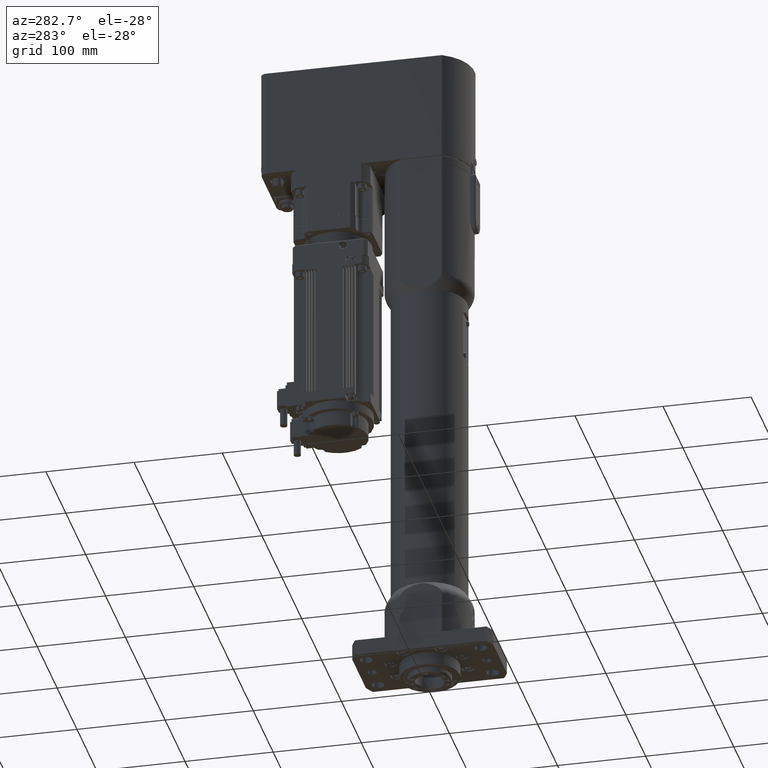
[diagram: clean part render]
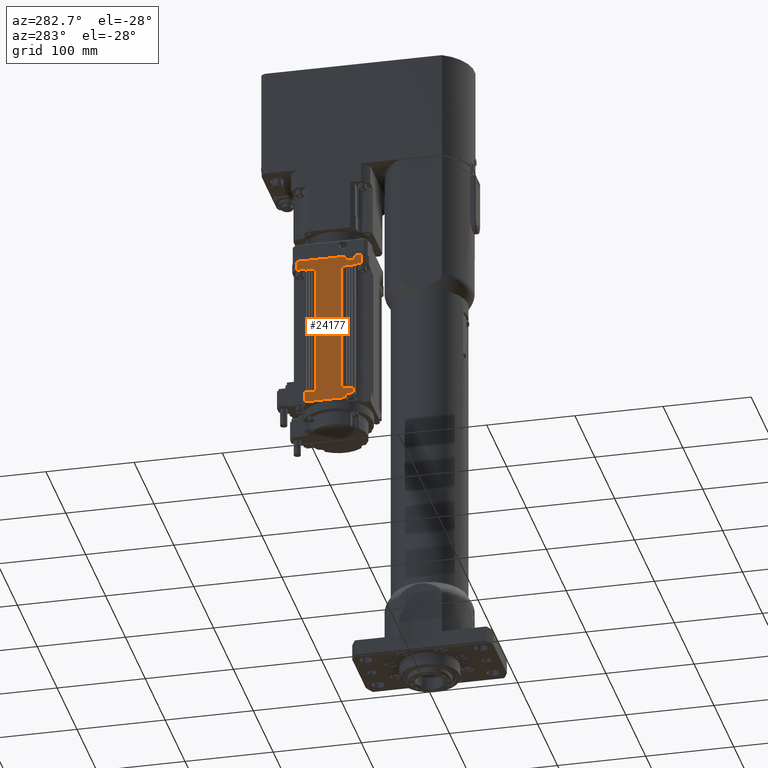
[diagram: same view with one face highlighted and labeled with its STEP entity id]
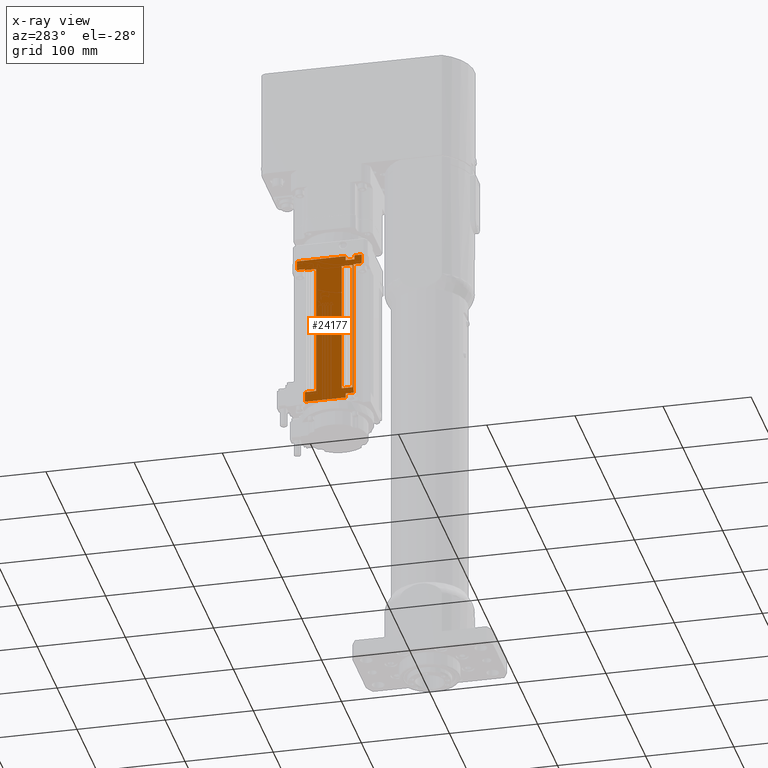
[diagram: x-ray of the same camera — body ghosted, the highlighted face saturated]
A machine part, auxiliary view. The second image highlights one B-rep face of the part: STEP entity #24177.
The next image is the same camera in x-ray: the body ghosted, the highlighted face saturated — about 0% of this face is hidden behind the body in this view.
In plain terms, the highlighted planar face has unit normal (-1, 0, 0).
Its self-contained STEP definition (entity closure, byte-faithful):
#1192=LINE('',#37565,#2947);
#1195=LINE('',#37578,#2950);
#1211=LINE('',#37623,#2966);
#1213=LINE('',#37629,#2968);
#1216=LINE('',#37634,#2971);
#1386=LINE('',#38057,#3141);
#1393=LINE('',#38075,#3148);
#1405=LINE('',#38105,#3160);
#1412=LINE('',#38125,#3167);
#1416=LINE('',#38139,#3171);
#1422=LINE('',#38154,#3177);
#1438=LINE('',#38206,#3193);
#1441=LINE('',#38217,#3196);
#1444=LINE('',#38228,#3199);
#1447=LINE('',#38238,#3202);
#1493=LINE('',#38383,#3248);
#1692=LINE('',#39104,#3447);
#1693=LINE('',#39107,#3448);
#1695=LINE('',#39112,#3450);
#1705=LINE('',#39140,#3460);
#1708=LINE('',#39148,#3463);
#1712=LINE('',#39159,#3467);
#1718=LINE('',#39177,#3473);
#1722=LINE('',#39186,#3477);
#1730=LINE('',#39209,#3485);
#1739=LINE('',#39229,#3494);
#1744=LINE('',#39242,#3499);
#1745=LINE('',#39248,#3500);
#1746=LINE('',#39252,#3501);
#1749=LINE('',#39262,#3504);
#1750=LINE('',#39266,#3505);
#1751=LINE('',#39267,#3506);
#1752=LINE('',#39268,#3507);
#1753=LINE('',#39269,#3508);
#2947=VECTOR('',#29880,10.);
#2950=VECTOR('',#29893,10.);
#2966=VECTOR('',#29937,10.);
#2968=VECTOR('',#29943,10.);
#2971=VECTOR('',#29948,10.);
#3141=VECTOR('',#30302,10.);
#3148=VECTOR('',#30315,10.);
#3160=VECTOR('',#30337,10.);
#3167=VECTOR('',#30354,10.);
#3171=VECTOR('',#30366,10.);
#3177=VECTOR('',#30378,10.);
#3193=VECTOR('',#30428,10.);
#3196=VECTOR('',#30437,10.);
#3199=VECTOR('',#30448,10.);
#3202=VECTOR('',#30459,10.);
#3248=VECTOR('',#30599,10.);
#3447=VECTOR('',#31324,10.);
#3448=VECTOR('',#31327,10.);
#3450=VECTOR('',#31331,10.);
#3460=VECTOR('',#31365,10.);
#3463=VECTOR('',#31376,10.);
#3467=VECTOR('',#31390,10.);
#3473=VECTOR('',#31412,10.);
#3477=VECTOR('',#31422,10.);
#3485=VECTOR('',#31446,10.);
#3494=VECTOR('',#31469,10.);
#3499=VECTOR('',#31488,10.);
#3500=VECTOR('',#31497,10.);
#3501=VECTOR('',#31502,10.);
#3504=VECTOR('',#31517,10.);
#3505=VECTOR('',#31524,10.);
#3506=VECTOR('',#31525,10.);
#3507=VECTOR('',#31526,10.);
#3508=VECTOR('',#31527,10.);
#4576=PLANE('',#26364);
#5084=FACE_BOUND('',#7560,.T.);
#6031=FACE_OUTER_BOUND('',#7559,.T.);
#7559=EDGE_LOOP('',(#18561,#18562,#18563,#18564,#18565,#18566,#18567,#18568,
#18569,#18570,#18571,#18572,#18573,#18574,#18575,#18576,#18577,#18578,#18579,
#18580,#18581,#18582,#18583,#18584));
#7560=EDGE_LOOP('',(#18585,#18586,#18587,#18588,#18589,#18590,#18591,#18592,
#18593,#18594));
#10368=VERTEX_POINT('',#37562);
#10369=VERTEX_POINT('',#37564);
#10371=VERTEX_POINT('',#37570);
#10374=VERTEX_POINT('',#37576);
#10387=VERTEX_POINT('',#37617);
#10389=VERTEX_POINT('',#37621);
#10391=VERTEX_POINT('',#37628);
#10392=VERTEX_POINT('',#37632);
#10552=VERTEX_POINT('',#38054);
#10553=VERTEX_POINT('',#38056);
#10559=VERTEX_POINT('',#38071);
#10561=VERTEX_POINT('',#38074);
#10573=VERTEX_POINT('',#38102);
#10574=VERTEX_POINT('',#38104);
#10582=VERTEX_POINT('',#38123);
#10588=VERTEX_POINT('',#38138);
#10592=VERTEX_POINT('',#38150);
#10594=VERTEX_POINT('',#38153);
#10613=VERTEX_POINT('',#38204);
#10617=VERTEX_POINT('',#38214);
#10618=VERTEX_POINT('',#38216);
#10622=VERTEX_POINT('',#38227);
#10676=VERTEX_POINT('',#38380);
#10677=VERTEX_POINT('',#38382);
#10896=VERTEX_POINT('',#39102);
#10897=VERTEX_POINT('',#39106);
#10899=VERTEX_POINT('',#39111);
#10901=VERTEX_POINT('',#39119);
#10904=VERTEX_POINT('',#39131);
#10913=VERTEX_POINT('',#39182);
#10921=VERTEX_POINT('',#39207);
#10925=VERTEX_POINT('',#39227);
#10927=VERTEX_POINT('',#39246);
#10928=VERTEX_POINT('',#39250);
#12935=EDGE_CURVE('',#10368,#10369,#1192,.T.);
#12942=EDGE_CURVE('',#10371,#10374,#1195,.T.);
#12965=EDGE_CURVE('',#10387,#10389,#1211,.T.);
#12968=EDGE_CURVE('',#10391,#10387,#1213,.T.);
#12971=EDGE_CURVE('',#10389,#10392,#1216,.T.);
#13177=EDGE_CURVE('',#10552,#10553,#1386,.T.);
#13185=EDGE_CURVE('',#10561,#10559,#1393,.T.);
#13199=EDGE_CURVE('',#10574,#10573,#1405,.T.);
#13209=EDGE_CURVE('',#10573,#10582,#1412,.T.);
#13216=EDGE_CURVE('',#10574,#10588,#1416,.T.);
#13223=EDGE_CURVE('',#10594,#10592,#1422,.T.);
#13250=EDGE_CURVE('',#10613,#10592,#1438,.T.);
#13255=EDGE_CURVE('',#10617,#10618,#1441,.T.);
#13261=EDGE_CURVE('',#10618,#10622,#1444,.T.);
#13267=EDGE_CURVE('',#10622,#10559,#1447,.T.);
#13343=EDGE_CURVE('',#10677,#10676,#1493,.T.);
#13670=EDGE_CURVE('',#10677,#10896,#1692,.T.);
#13671=EDGE_CURVE('',#10896,#10897,#1693,.T.);
#13674=EDGE_CURVE('',#10588,#10899,#1695,.T.);
#13689=EDGE_CURVE('',#10897,#10901,#1705,.T.);
#13693=EDGE_CURVE('',#10901,#10904,#1708,.T.);
#13699=EDGE_CURVE('',#10904,#10613,#1712,.T.);
#13708=EDGE_CURVE('',#10582,#10594,#1718,.T.);
#13713=EDGE_CURVE('',#10553,#10913,#1722,.T.);
#13725=EDGE_CURVE('',#10921,#10552,#1730,.T.);
#13736=EDGE_CURVE('',#10925,#10921,#1739,.T.);
#13743=EDGE_CURVE('',#10561,#10925,#1744,.T.);
#13746=EDGE_CURVE('',#10676,#10927,#1745,.T.);
#13748=EDGE_CURVE('',#10928,#10927,#1746,.T.);
#13752=EDGE_CURVE('',#10913,#10617,#1749,.T.);
#13753=EDGE_CURVE('',#10369,#10928,#1750,.T.);
#13754=EDGE_CURVE('',#10368,#10391,#1751,.T.);
#13755=EDGE_CURVE('',#10392,#10371,#1752,.T.);
#13756=EDGE_CURVE('',#10899,#10374,#1753,.T.);
#18561=ORIENTED_EDGE('',*,*,#13699,.F.);
#18562=ORIENTED_EDGE('',*,*,#13693,.F.);
#18563=ORIENTED_EDGE('',*,*,#13689,.F.);
#18564=ORIENTED_EDGE('',*,*,#13671,.F.);
#18565=ORIENTED_EDGE('',*,*,#13670,.F.);
#18566=ORIENTED_EDGE('',*,*,#13343,.T.);
#18567=ORIENTED_EDGE('',*,*,#13746,.T.);
#18568=ORIENTED_EDGE('',*,*,#13748,.F.);
#18569=ORIENTED_EDGE('',*,*,#13753,.F.);
#18570=ORIENTED_EDGE('',*,*,#12935,.F.);
#18571=ORIENTED_EDGE('',*,*,#13754,.T.);
#18572=ORIENTED_EDGE('',*,*,#12968,.T.);
#18573=ORIENTED_EDGE('',*,*,#12965,.T.);
#18574=ORIENTED_EDGE('',*,*,#12971,.T.);
#18575=ORIENTED_EDGE('',*,*,#13755,.T.);
#18576=ORIENTED_EDGE('',*,*,#12942,.T.);
#18577=ORIENTED_EDGE('',*,*,#13756,.F.);
#18578=ORIENTED_EDGE('',*,*,#13674,.F.);
#18579=ORIENTED_EDGE('',*,*,#13216,.F.);
#18580=ORIENTED_EDGE('',*,*,#13199,.T.);
#18581=ORIENTED_EDGE('',*,*,#13209,.T.);
#18582=ORIENTED_EDGE('',*,*,#13708,.T.);
#18583=ORIENTED_EDGE('',*,*,#13223,.T.);
#18584=ORIENTED_EDGE('',*,*,#13250,.F.);
#18585=ORIENTED_EDGE('',*,*,#13725,.F.);
#18586=ORIENTED_EDGE('',*,*,#13736,.F.);
#18587=ORIENTED_EDGE('',*,*,#13743,.F.);
#18588=ORIENTED_EDGE('',*,*,#13185,.T.);
#18589=ORIENTED_EDGE('',*,*,#13267,.F.);
#18590=ORIENTED_EDGE('',*,*,#13261,.F.);
#18591=ORIENTED_EDGE('',*,*,#13255,.F.);
#18592=ORIENTED_EDGE('',*,*,#13752,.F.);
#18593=ORIENTED_EDGE('',*,*,#13713,.F.);
#18594=ORIENTED_EDGE('',*,*,#13177,.F.);
#24177=ADVANCED_FACE('',(#6031,#5084),#4576,.T.);
#26364=AXIS2_PLACEMENT_3D('',#39265,#31522,#31523);
#29880=DIRECTION('',(-1.83881657815785E-13,-1.16659582020141E-14,-1.));
#29893=DIRECTION('',(-1.83881657815785E-13,-1.16659582020141E-14,-1.));
#29937=DIRECTION('',(3.72374690894342E-15,1.,-1.16659582020148E-14));
#29943=DIRECTION('',(-1.83881657815785E-13,-1.16659582020141E-14,-1.));
#29948=DIRECTION('',(1.83881657815785E-13,1.16659582020141E-14,1.));
#30302=DIRECTION('',(3.72374690894342E-15,1.,-1.16659582020148E-14));
#30315=DIRECTION('',(-1.83881657815785E-13,-1.15506103552998E-14,-1.));
#30337=DIRECTION('',(-3.72374690894342E-15,-1.,1.16659582020148E-14));
#30354=DIRECTION('',(-3.72374690894342E-15,-1.,1.16659582020148E-14));
#30366=DIRECTION('',(3.72374690894342E-15,1.,-1.16659582020148E-14));
#30378=DIRECTION('',(-1.83881657815785E-13,-1.19254908571213E-14,-1.));
#30428=DIRECTION('',(-3.72374690894342E-15,-1.,1.16659582020148E-14));
#30437=DIRECTION('',(-3.72374690894342E-15,-1.,1.16659582020148E-14));
#30448=DIRECTION('',(-3.72374690894342E-15,-1.,1.16659582020148E-14));
#30459=DIRECTION('',(-3.72374690894342E-15,-1.,1.16659582020148E-14));
#30599=DIRECTION('',(1.83881657815785E-13,1.16659582020141E-14,1.));
#31324=DIRECTION('',(-9.58274665166003E-16,1.,-1.1665958202014E-14));
#31327=DIRECTION('',(1.83881657815785E-13,1.16659582020141E-14,1.));
#31331=DIRECTION('',(1.83881657815785E-13,1.16659582020141E-14,1.));
#31365=DIRECTION('',(-3.72374690894342E-15,-1.,1.16659582020148E-14));
#31376=DIRECTION('',(-3.72374690894342E-15,-1.,1.16659582020148E-14));
#31390=DIRECTION('',(-3.72374690894342E-15,-1.,1.16659582020148E-14));
#31412=DIRECTION('',(-3.72374690894342E-15,-1.,1.16659582020148E-14));
#31422=DIRECTION('',(-1.83881657815785E-13,-1.14352625085855E-14,-1.));
#31446=DIRECTION('',(3.72374690894342E-15,1.,-1.16659582020148E-14));
#31469=DIRECTION('',(3.72374690894342E-15,1.,-1.16659582020148E-14));
#31488=DIRECTION('',(3.72374690894342E-15,1.,-1.16659582020148E-14));
#31497=DIRECTION('',(-3.72374690894342E-15,-1.,1.16659582020148E-14));
#31502=DIRECTION('',(-1.83881657815785E-13,-1.16659582020141E-14,-1.));
#31517=DIRECTION('',(-3.72374690894342E-15,-1.,1.16659582020148E-14));
#31522=DIRECTION('center_axis',(-1.,3.72374690894556E-15,1.83881657815785E-13));
#31523=DIRECTION('ref_axis',(3.5527136788005E-15,1.,-1.13686837721616E-14));
#31524=DIRECTION('',(3.72374690894342E-15,1.,-1.16659582020148E-14));
#31525=DIRECTION('',(3.72374690894342E-15,1.,-1.16659582020148E-14));
#31526=DIRECTION('',(3.72374690894342E-15,1.,-1.16659582020148E-14));
#31527=DIRECTION('',(3.72374690894342E-15,1.,-1.16659582020148E-14));
#37562=CARTESIAN_POINT('',(-43.4999999999162,67.1659125265818,501.500000000007));
#37564=CARTESIAN_POINT('',(-43.4999999999182,67.1659125265816,490.500000000007));
#37565=CARTESIAN_POINT('',(-43.4999999999162,67.1659125265818,501.500000000007));
#37570=CARTESIAN_POINT('',(-43.499999999916,140.834087473434,501.500000000006));
#37576=CARTESIAN_POINT('',(-43.499999999918,140.834087473434,490.500000000006));
#37578=CARTESIAN_POINT('',(-43.499999999916,140.834087473434,501.500000000006));
#37617=CARTESIAN_POINT('',(-43.4999999999171,75.5000000000077,496.500000000007));
#37621=CARTESIAN_POINT('',(-43.4999999999171,85.5000000000078,496.500000000007));
#37623=CARTESIAN_POINT('',(-43.4999999999171,73.8329562632947,496.500000000007));
#37628=CARTESIAN_POINT('',(-43.4999999999162,75.5000000000078,501.500000000007));
#37629=CARTESIAN_POINT('',(-43.4999999999162,75.5000000000078,501.500000000007));
#37632=CARTESIAN_POINT('',(-43.4999999999162,85.5000000000078,501.500000000007));
#37634=CARTESIAN_POINT('',(-43.4999999999162,85.5000000000078,501.500000000007));
#38054=CARTESIAN_POINT('',(-43.4999999999183,86.0000000000077,489.500000000007));
#38056=CARTESIAN_POINT('',(-43.4999999999183,90.0000000000077,489.500000000007));
#38057=CARTESIAN_POINT('',(-43.4999999999184,78.0829562632946,489.500000000007));
#38071=CARTESIAN_POINT('',(-43.4999999999465,77.5000000000059,336.500000000007));
#38074=CARTESIAN_POINT('',(-43.4999999999184,77.5000000000077,489.500000000007));
#38075=CARTESIAN_POINT('',(-43.4999999999173,77.5000000000078,495.500000000007));
#38102=CARTESIAN_POINT('',(-43.4999999999182,125.000000000008,489.500000000006));
#38104=CARTESIAN_POINT('',(-43.4999999999182,128.000000000008,489.500000000006));
#38105=CARTESIAN_POINT('',(-43.4999999999183,97.3329562632946,489.500000000007));
#38123=CARTESIAN_POINT('',(-43.4999999999182,122.000000000008,489.500000000006));
#38125=CARTESIAN_POINT('',(-43.4999999999183,95.8329562632946,489.500000000007));
#38138=CARTESIAN_POINT('',(-43.4999999999182,131.500000000008,489.500000000006));
#38139=CARTESIAN_POINT('',(-43.4999999999183,98.8329562632946,489.500000000007));
#38150=CARTESIAN_POINT('',(-43.4999999999464,119.000000000006,336.500000000007));
#38153=CARTESIAN_POINT('',(-43.4999999999182,119.000000000008,489.500000000006));
#38154=CARTESIAN_POINT('',(-43.4999999999171,119.000000000008,495.500000000006));
#38204=CARTESIAN_POINT('',(-43.4999999999464,122.000000000006,336.500000000007));
#38206=CARTESIAN_POINT('',(-43.4999999999465,80.5529379907468,336.500000000007));
#38214=CARTESIAN_POINT('',(-43.4999999999465,86.0000000000059,336.500000000007));
#38216=CARTESIAN_POINT('',(-43.4999999999465,82.500000000006,336.500000000007));
#38217=CARTESIAN_POINT('',(-43.4999999999465,80.5529379907468,336.500000000007));
#38227=CARTESIAN_POINT('',(-43.4999999999465,79.5000000000059,336.500000000007));
#38228=CARTESIAN_POINT('',(-43.4999999999465,80.5529379907468,336.500000000007));
#38238=CARTESIAN_POINT('',(-43.4999999999465,80.5529379907468,336.500000000007));
#38380=CARTESIAN_POINT('',(-43.4999999999478,85.5000000000058,329.500000000007));
#38382=CARTESIAN_POINT('',(-43.4999999999487,85.5000000000057,324.500000000007));
#38383=CARTESIAN_POINT('',(-43.4999999999324,85.5000000000068,413.000000000007));
#39102=CARTESIAN_POINT('',(-43.4999999999488,131.500000000006,324.500000000006));
#39104=CARTESIAN_POINT('',(-43.4999999999487,75.5000000000057,324.500000000007));
#39106=CARTESIAN_POINT('',(-43.4999999999463,131.500000000006,336.500000000007));
#39107=CARTESIAN_POINT('',(-43.499999999917,131.500000000008,496.000000000006));
#39111=CARTESIAN_POINT('',(-43.499999999918,131.500000000008,490.500000000006));
#39112=CARTESIAN_POINT('',(-43.499999999917,131.500000000008,496.000000000006));
#39119=CARTESIAN_POINT('',(-43.4999999999463,128.000000000006,336.500000000007));
#39131=CARTESIAN_POINT('',(-43.4999999999463,125.000000000006,336.500000000007));
#39140=CARTESIAN_POINT('',(-43.4999999999465,80.5529379907468,336.500000000007));
#39148=CARTESIAN_POINT('',(-43.4999999999465,80.5529379907468,336.500000000007));
#39159=CARTESIAN_POINT('',(-43.4999999999465,80.5529379907468,336.500000000007));
#39177=CARTESIAN_POINT('',(-43.4999999999183,94.0829562632946,489.500000000007));
#39182=CARTESIAN_POINT('',(-43.4999999999465,90.0000000000059,336.500000000007));
#39186=CARTESIAN_POINT('',(-43.4999999999314,90.0000000000069,418.500000000007));
#39207=CARTESIAN_POINT('',(-43.4999999999184,82.5000000000077,489.500000000007));
#39209=CARTESIAN_POINT('',(-43.4999999999184,76.0829562632947,489.500000000007));
#39227=CARTESIAN_POINT('',(-43.4999999999184,79.5000000000077,489.500000000007));
#39229=CARTESIAN_POINT('',(-43.4999999999184,74.5829562632947,489.500000000007));
#39242=CARTESIAN_POINT('',(-43.4999999999184,73.0829562632947,489.500000000007));
#39246=CARTESIAN_POINT('',(-43.4999999999478,76.5000000000058,329.500000000007));
#39248=CARTESIAN_POINT('',(-43.4999999999478,73.6997394651246,329.500000000007));
#39250=CARTESIAN_POINT('',(-43.4999999999182,76.5000000000077,490.500000000007));
#39252=CARTESIAN_POINT('',(-43.4999999999172,76.5000000000077,496.000000000007));
#39262=CARTESIAN_POINT('',(-43.4999999999465,80.5529379907468,336.500000000007));
#39265=CARTESIAN_POINT('Origin',(-43.4999999999162,67.1659125265818,501.500000000007));
#39266=CARTESIAN_POINT('',(-43.4999999999182,67.1659125265816,490.500000000007));
#39267=CARTESIAN_POINT('',(-43.4999999999162,67.1659125265818,501.500000000007));
#39268=CARTESIAN_POINT('',(-43.4999999999162,67.1659125265818,501.500000000007));
#39269=CARTESIAN_POINT('',(-43.4999999999182,67.1659125265816,490.500000000007));